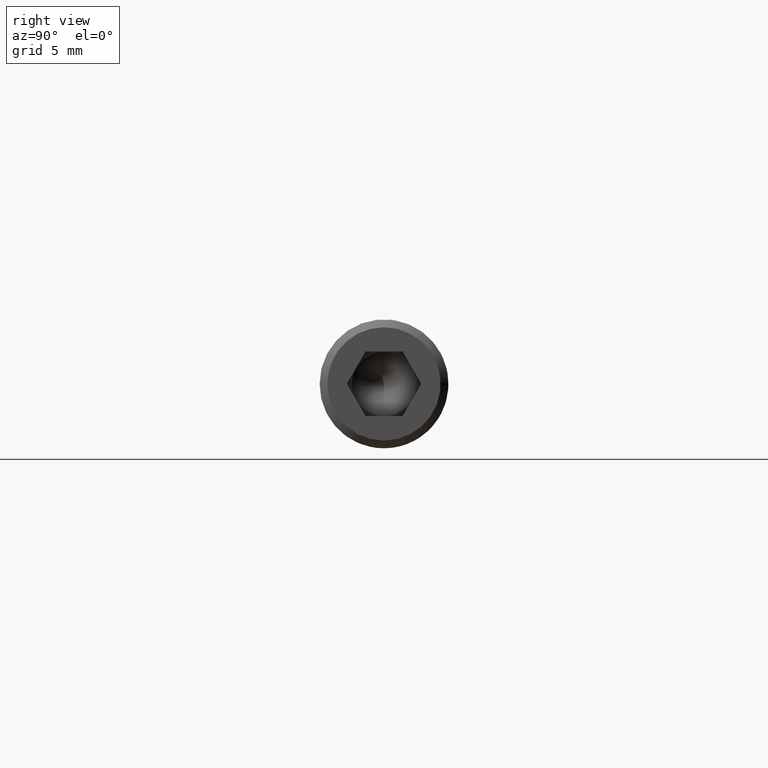
[diagram: clean part render]
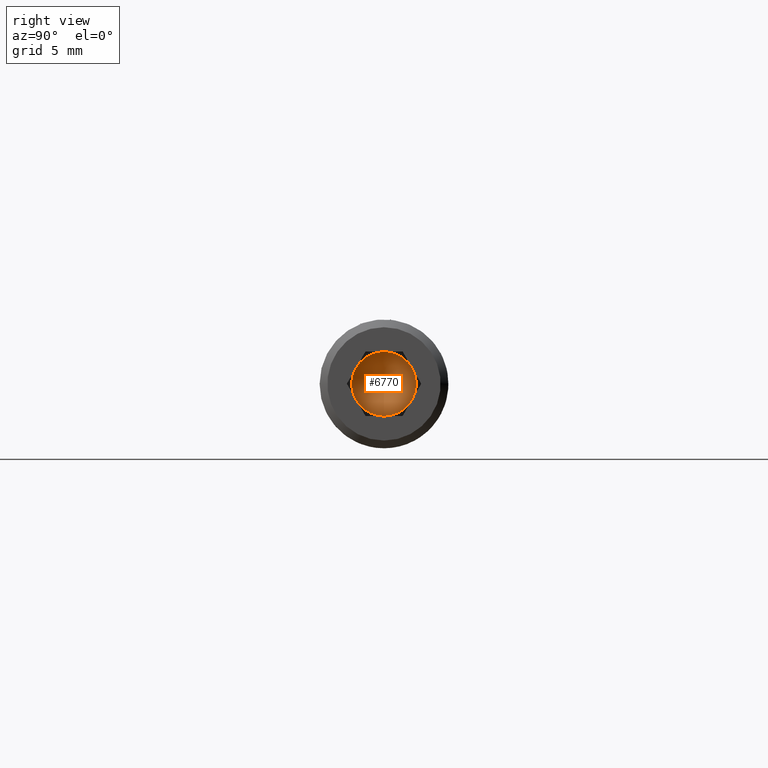
[diagram: same view with one face highlighted and labeled with its STEP entity id]
A machine part, right view. The second image highlights one B-rep face of the part: STEP entity #6770.
In plain terms, the highlighted conical surface has half-angle 59 deg.
Its self-contained STEP definition (entity closure, byte-faithful):
#427 = CARTESIAN_POINT ( 'NONE',  ( 49.00000000000000000, 0.0000000000000000000, 3.502650072895948000E-015 ) ) ;
#1490 = DIRECTION ( 'NONE',  ( 0.0000000000000000000, 0.0000000000000000000, -1.000000000000000000 ) ) ;
#2114 = ORIENTED_EDGE ( 'NONE', *, *, #8453, .T. ) ;
#2589 = CARTESIAN_POINT ( 'NONE',  ( 49.00000000000000000, 0.0000000000000000000, 4.041334437186264600E-015 ) ) ;
#2653 = DIRECTION ( 'NONE',  ( 1.000000000000000000, -0.0000000000000000000, 0.0000000000000000000 ) ) ;
#2710 = CARTESIAN_POINT ( 'NONE',  ( 49.00000000000000000, 0.0000000000000000000, 3.502650072895948000E-015 ) ) ;
#3204 = EDGE_CURVE ( 'NONE', #16288, #8338, #7347, .T. ) ;
#3464 = AXIS2_PLACEMENT_3D ( 'NONE', #2710, #2653, #1490 ) ;
#3524 = DIRECTION ( 'NONE',  ( 0.0000000000000000000, 0.0000000000000000000, -1.000000000000000000 ) ) ;
#3625 = EDGE_CURVE ( 'NONE', #16521, #9754, #14412, .T. ) ;
#3653 = DIRECTION ( 'NONE',  ( 0.0000000000000000000, 0.0000000000000000000, -1.000000000000000000 ) ) ;
#3838 = ORIENTED_EDGE ( 'NONE', *, *, #9322, .T. ) ;
#3848 = DIRECTION ( 'NONE',  ( 1.000000000000000000, -0.0000000000000000000, 0.0000000000000000000 ) ) ;
#3860 = DIRECTION ( 'NONE',  ( 1.000000000000000000, -0.0000000000000000000, 0.0000000000000000000 ) ) ;
#4069 = CIRCLE ( 'NONE', #7037, 2.500000000000004000 ) ;
#4541 = CIRCLE ( 'NONE', #11563, 2.500000000000004000 ) ;
#4840 = ORIENTED_EDGE ( 'NONE', *, *, #3625, .T. ) ;
#5508 = DIRECTION ( 'NONE',  ( 0.0000000000000000000, 0.0000000000000000000, -1.000000000000000000 ) ) ;
#6343 = CARTESIAN_POINT ( 'NONE',  ( 49.00000000000000000, 2.165063509461099900, 1.250000000000004700 ) ) ;
#6393 = CARTESIAN_POINT ( 'NONE',  ( 49.00000000000000000, 0.0000000000000000000, 3.502650072895948000E-015 ) ) ;
#6770 = ADVANCED_FACE ( 'NONE', ( #11801 ), #14829, .F. ) ;
#7037 = AXIS2_PLACEMENT_3D ( 'NONE', #7480, #13861, #3653 ) ;
#7347 = CIRCLE ( 'NONE', #10903, 2.500000000000004000 ) ;
#7408 = CARTESIAN_POINT ( 'NONE',  ( 49.00000000000000000, 0.0000000000000000000, 2.500000000000007500 ) ) ;
#7480 = CARTESIAN_POINT ( 'NONE',  ( 49.00000000000000000, 0.0000000000000000000, 3.502650072895948000E-015 ) ) ;
#8081 = CARTESIAN_POINT ( 'NONE',  ( 49.00000000000000000, 0.0000000000000000000, -2.499999999999999600 ) ) ;
#8161 = EDGE_CURVE ( 'NONE', #9754, #8980, #4541, .T. ) ;
#8312 = CIRCLE ( 'NONE', #13065, 2.500000000000004000 ) ;
#8338 = VERTEX_POINT ( 'NONE', #9694 ) ;
#8453 = EDGE_CURVE ( 'NONE', #14815, #16288, #10574, .T. ) ;
#8889 = DIRECTION ( 'NONE',  ( 1.000000000000000000, -0.0000000000000000000, -1.294696882351797000E-016 ) ) ;
#8980 = VERTEX_POINT ( 'NONE', #6343 ) ;
#9066 = ORIENTED_EDGE ( 'NONE', *, *, #3204, .T. ) ;
#9090 = EDGE_LOOP ( 'NONE', ( #4840, #16636, #3838, #2114, #9066, #14511 ) ) ;
#9322 = EDGE_CURVE ( 'NONE', #8980, #14815, #8312, .T. ) ;
#9694 = CARTESIAN_POINT ( 'NONE',  ( 49.00000000000000000, -2.165063509461098600, -1.249999999999996700 ) ) ;
#9754 = VERTEX_POINT ( 'NONE', #11800 ) ;
#10574 = CIRCLE ( 'NONE', #3464, 2.500000000000004000 ) ;
#10581 = AXIS2_PLACEMENT_3D ( 'NONE', #12733, #8889, #14196 ) ;
#10903 = AXIS2_PLACEMENT_3D ( 'NONE', #13038, #3848, #15474 ) ;
#11563 = AXIS2_PLACEMENT_3D ( 'NONE', #6393, #3860, #11643 ) ;
#11643 = DIRECTION ( 'NONE',  ( 0.0000000000000000000, 0.0000000000000000000, -1.000000000000000000 ) ) ;
#11800 = CARTESIAN_POINT ( 'NONE',  ( 49.00000000000000000, 2.165063509461099500, -1.249999999999998000 ) ) ;
#11801 = FACE_OUTER_BOUND ( 'NONE', #9090, .T. ) ;
#11865 = EDGE_CURVE ( 'NONE', #8338, #16521, #4069, .T. ) ;
#12045 = CARTESIAN_POINT ( 'NONE',  ( 49.00000000000000000, -2.165063509461099500, 1.250000000000005800 ) ) ;
#12733 = CARTESIAN_POINT ( 'NONE',  ( 49.00000000000000000, 0.0000000000000000000, 4.041334437186264600E-015 ) ) ;
#13038 = CARTESIAN_POINT ( 'NONE',  ( 49.00000000000000000, 0.0000000000000000000, 3.502650072895948000E-015 ) ) ;
#13065 = AXIS2_PLACEMENT_3D ( 'NONE', #427, #13275, #5508 ) ;
#13275 = DIRECTION ( 'NONE',  ( 1.000000000000000000, -0.0000000000000000000, 0.0000000000000000000 ) ) ;
#13861 = DIRECTION ( 'NONE',  ( 1.000000000000000000, -0.0000000000000000000, 0.0000000000000000000 ) ) ;
#14185 = DIRECTION ( 'NONE',  ( 1.000000000000000000, -0.0000000000000000000, -1.294696882351797000E-016 ) ) ;
#14196 = DIRECTION ( 'NONE',  ( 0.0000000000000000000, 0.0000000000000000000, -1.000000000000000000 ) ) ;
#14412 = CIRCLE ( 'NONE', #10581, 2.500000000000003600 ) ;
#14511 = ORIENTED_EDGE ( 'NONE', *, *, #11865, .T. ) ;
#14815 = VERTEX_POINT ( 'NONE', #7408 ) ;
#14829 = CONICAL_SURFACE ( 'NONE', #15345, 2.500000000000003600, 1.029744258676651200 ) ;
#15345 = AXIS2_PLACEMENT_3D ( 'NONE', #2589, #14185, #3524 ) ;
#15474 = DIRECTION ( 'NONE',  ( 0.0000000000000000000, 0.0000000000000000000, -1.000000000000000000 ) ) ;
#16288 = VERTEX_POINT ( 'NONE', #12045 ) ;
#16521 = VERTEX_POINT ( 'NONE', #8081 ) ;
#16636 = ORIENTED_EDGE ( 'NONE', *, *, #8161, .T. ) ;